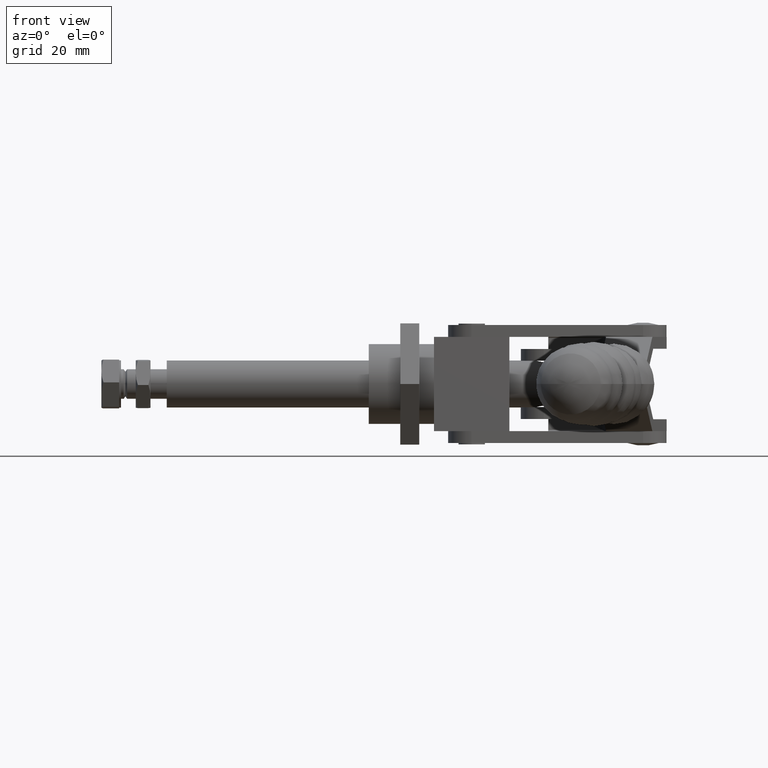
[diagram: clean part render]
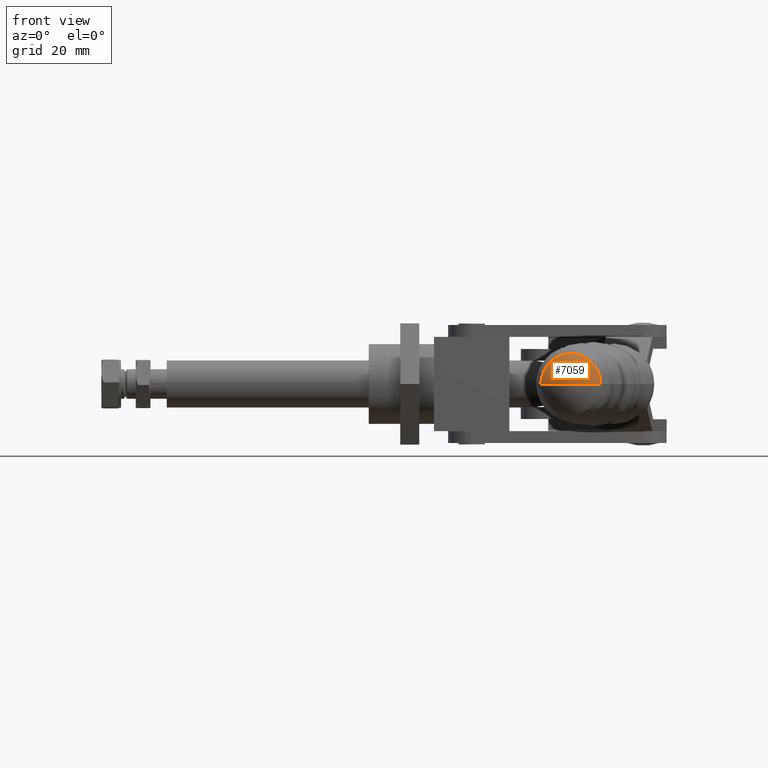
[diagram: same view with one face highlighted and labeled with its STEP entity id]
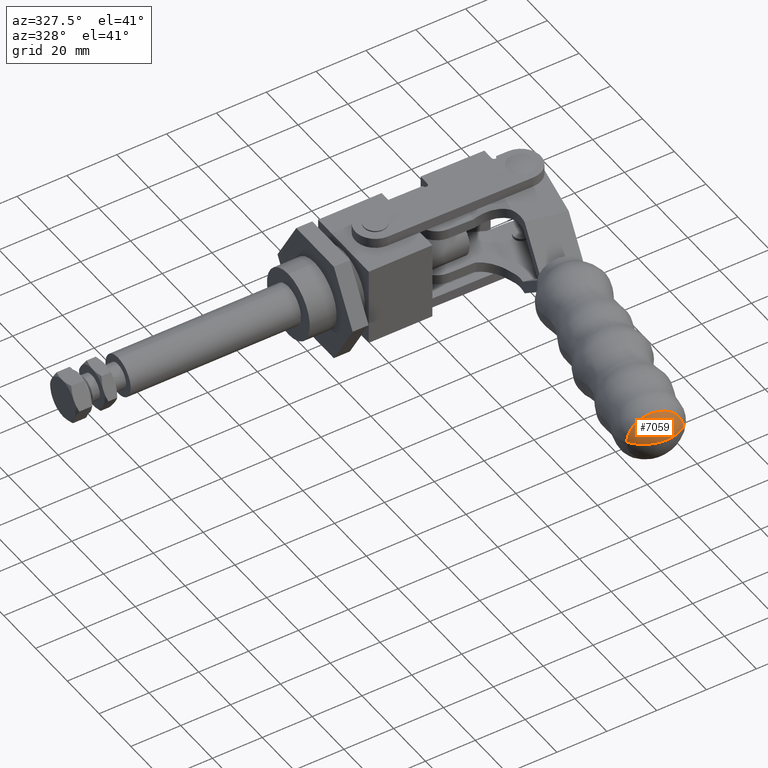
[diagram: same view with one face highlighted and labeled with its STEP entity id]
A machine part, front view. The second image highlights one B-rep face of the part: STEP entity #7059.
A second angle (auxiliary view) of the same face is appended — the face is thin or edge-on in the first view.
In plain terms, the highlighted face is a freeform B-spline surface patch.
Its self-contained STEP definition (entity closure, byte-faithful):
#19 = FACE_OUTER_BOUND ( 'NONE', #2557, .T. ) ;
#482 = VERTEX_POINT ( 'NONE', #6468 ) ;
#575 = CARTESIAN_POINT ( 'NONE',  ( 27.61394310678314300, -127.6480370645885100, 14.97184531461197900 ) ) ;
#747 = CARTESIAN_POINT ( 'NONE',  ( 20.78318637387543400, -123.6189522122130600, 1.595390924130914100E-014 ) ) ;
#1327 = CARTESIAN_POINT ( 'NONE',  ( 12.93020335162438400, -124.7250353664298100, 1.596390140041357500E-014 ) ) ;
#1493 = DIRECTION ( 'NONE',  ( 0.9807568437023571600, -0.1952332285523910600, 1.095060881000970600E-016 ) ) ;
#1633 = ORIENTED_EDGE ( 'NONE', *, *, #2414, .F. ) ;
#2083 = CARTESIAN_POINT ( 'NONE',  ( 30.92689679502394600, -125.6381982136433200, 20.68547466435413900 ) ) ;
#2247 = DIRECTION ( 'NONE',  ( -1.138879358587483000E-016, -1.121880954766726700E-017, 1.000000000000000000 ) ) ;
#2414 = EDGE_CURVE ( 'NONE', #3716, #2511, #9512, .T. ) ;
#2511 = VERTEX_POINT ( 'NONE', #8883 ) ;
#2557 = EDGE_LOOP ( 'NONE', ( #2621, #6582, #1633 ) ) ;
#2621 = ORIENTED_EDGE ( 'NONE', *, *, #8795, .F. ) ;
#2813 = CARTESIAN_POINT ( 'NONE',  ( 19.99715076451835600, -127.5676130471888600, 1.859320408679674700E-014 ) ) ;
#2844 = CARTESIAN_POINT ( 'NONE',  ( 10.63947595272692000, -121.5997062107828000, 1.608793655264284000E-014 ) ) ;
#3258 = DIRECTION ( 'NONE',  ( -6.220137079446978500E-018, 3.512798439105614500E-017, -1.000000000000000000 ) ) ;
#3550 = CARTESIAN_POINT ( 'NONE',  ( 19.99715076451835900, -127.5676130471888300, 1.582008999437206600E-014 ) ) ;
#3582 = CARTESIAN_POINT ( 'NONE',  ( 23.79800971995034700, -128.3216591652143600, 1.624450247550816500E-014 ) ) ;
#3598 = CIRCLE ( 'NONE', #5787, 15.32337494834798800 ) ;
#3716 = VERTEX_POINT ( 'NONE', #8372 ) ;
#4351 = CARTESIAN_POINT ( 'NONE',  ( 16.19727503268407500, -126.8086276917216100, 7.749866581173691300 ) ) ;
#5109 = CARTESIAN_POINT ( 'NONE',  ( 27.61394310678314700, -127.6480370645884600, 1.668664849036305400E-014 ) ) ;
#5112 = AXIS2_PLACEMENT_3D ( 'NONE', #6808, #2247, #7558 ) ;
#5246 = CIRCLE ( 'NONE', #5112, 15.32337494834799000 ) ;
#5787 = AXIS2_PLACEMENT_3D ( 'NONE', #7797, #3258, #8582 ) ;
#5859 = CARTESIAN_POINT ( 'NONE',  ( 12.93020335162438200, -124.7250353664298400, 14.97184531461199000 ) ) ;
#6014 = DIRECTION ( 'NONE',  ( 0.1952332285523905900, 0.9807568437023573800, 3.323763365293902800E-017 ) ) ;
#6432 = EDGE_CURVE ( 'NONE', #482, #2511, #5246, .T. ) ;
#6468 = CARTESIAN_POINT ( 'NONE',  ( 19.99715076450626200, -127.5676130471864100, 1.582008999437146400E-014 ) ) ;
#6582 = ORIENTED_EDGE ( 'NONE', *, *, #6432, .T. ) ;
#6626 = CARTESIAN_POINT ( 'NONE',  ( 30.92689679502395400, -125.6381982136433100, 1.708650194680268700E-014 ) ) ;
#6680 =( BOUNDED_SURFACE ( )  B_SPLINE_SURFACE ( 3, 3, ( 
 ( #3550, #7353, #2813, #8117 ),
 ( #3582, #8876, #4351, #9649 ),
 ( #5109, #575, #5859, #1327 ),
 ( #6626, #2083, #7386, #2844 ) ),
 .UNSPECIFIED., .F., .F., .F. ) 
 B_SPLINE_SURFACE_WITH_KNOTS ( ( 4, 4 ),
 ( 4, 4 ),
 ( 0.0000000000000000000, 1.000000000000000000 ),
 ( 0.0000000000000000000, 1.000000000000000000 ),
 .UNSPECIFIED. ) 
 GEOMETRIC_REPRESENTATION_ITEM ( )  RATIONAL_B_SPLINE_SURFACE ( (
 ( 1.000000000000000000, 0.3333333333333334300, 0.3333333333333334300, 1.000000000000000000),
 ( 0.9547464034373690500, 0.3182488011457897900, 0.3182488011457897900, 0.9547464034373690500),
 ( 0.9547464034373690500, 0.3182488011457897900, 0.3182488011457897900, 0.9547464034373690500),
 ( 1.000000000000000000, 0.3333333333333334300, 0.3333333333333334300, 1.000000000000000000) ) ) 
 REPRESENTATION_ITEM ( '' )  SURFACE ( )  );
#6808 = CARTESIAN_POINT ( 'NONE',  ( 22.97901602223823400, -112.5371672988930700, 1.632831218184937000E-014 ) ) ;
#7059 = ADVANCED_FACE ( 'N', ( #19 ), #6680, .T. ) ;
#7353 = CARTESIAN_POINT ( 'NONE',  ( 19.99715076451835900, -127.5676130471888400, 9.014722310390484000E-015 ) ) ;
#7386 = CARTESIAN_POINT ( 'NONE',  ( 10.63947595272692200, -121.5997062107828000, 20.68547466435413900 ) ) ;
#7558 = DIRECTION ( 'NONE',  ( 0.9807568437023571600, -0.1952332285523906400, 1.095060881000969600E-016 ) ) ;
#7595 = AXIS2_PLACEMENT_3D ( 'NONE', #747, #6014, #1493 ) ;
#7797 = CARTESIAN_POINT ( 'NONE',  ( 22.99854817043843600, -112.5410554434196100, 1.632927357203385200E-014 ) ) ;
#8117 = CARTESIAN_POINT ( 'NONE',  ( 19.99715076451835600, -127.5676130471888600, 1.582008999437206000E-014 ) ) ;
#8372 = CARTESIAN_POINT ( 'NONE',  ( 10.63947595272689600, -121.5997062107827800, 1.608793655264284300E-014 ) ) ;
#8582 = DIRECTION ( 'NONE',  ( -0.9807568437023571600, 0.1952332285523906700, 1.295859181463843900E-017 ) ) ;
#8795 = EDGE_CURVE ( 'NONE', #482, #3716, #3598, .T. ) ;
#8876 = CARTESIAN_POINT ( 'NONE',  ( 23.79800971995034700, -128.3216591652143600, 7.749866581173678000 ) ) ;
#8883 = CARTESIAN_POINT ( 'NONE',  ( 30.92689679502395700, -125.6381982136433100, 1.708650194680268700E-014 ) ) ;
#9512 = CIRCLE ( 'NONE', #7595, 10.34273733217707800 ) ;
#9649 = CARTESIAN_POINT ( 'NONE',  ( 16.19727503268407500, -126.8086276917215700, 1.587038736802883000E-014 ) ) ;